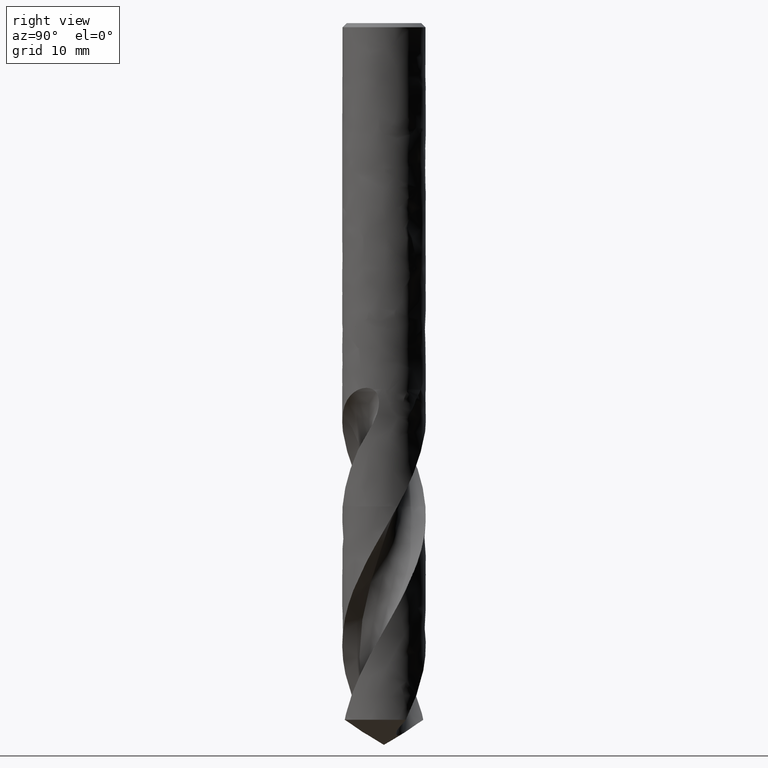
[diagram: clean part render]
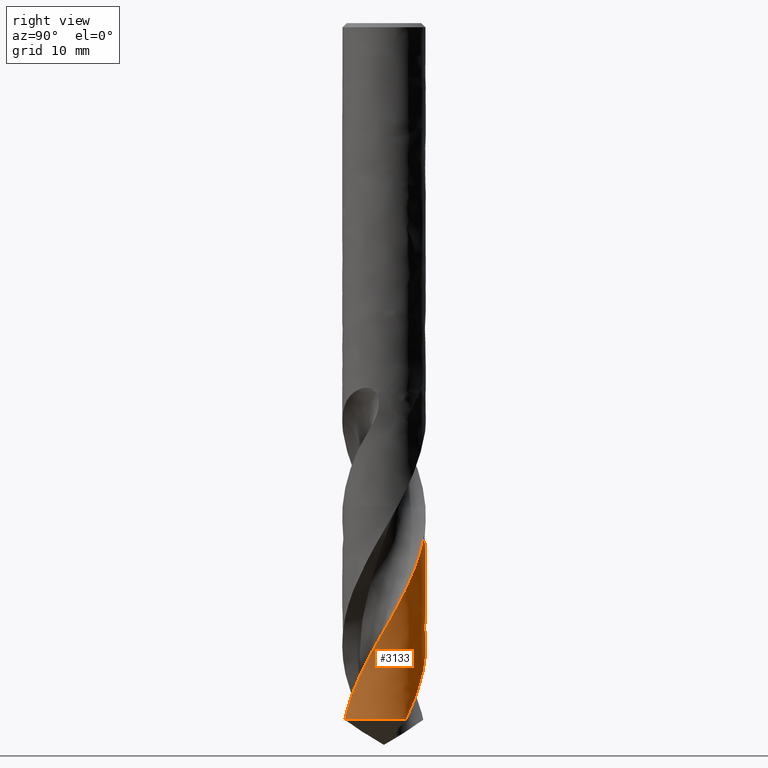
[diagram: same view with one face highlighted and labeled with its STEP entity id]
A machine part, right view. The second image highlights one B-rep face of the part: STEP entity #3133.
In plain terms, the highlighted face is a freeform B-spline surface patch.
Its self-contained STEP definition (entity closure, byte-faithful):
#1562 = VERTEX_POINT('', #1563);
#1563 = CARTESIAN_POINT('', (-0.714456293765341, 5.45339822535446, -63.6));
#1636 = EDGE_CURVE('', #1637, #1562, #1639, .T.);
#1637 = VERTEX_POINT('', #1638);
#1638 = CARTESIAN_POINT('', (-5.5, 4.23115469105411E-15, -63.6));
#1639 = CIRCLE('', #1640, 5.5);
#1640 = AXIS2_PLACEMENT_3D('', #1641, #1642, #1643);
#1641 = CARTESIAN_POINT('', (-9.02056207507939E-16, 4.89357754345122E-15, -63.6));
#1642 = DIRECTION('', (3.74939945665464E-33, 6.12323399573677E-17, -1.));
#1643 = DIRECTION('', (-1., -1.20440518617658E-16, -1.11242542372927E-32));
#1792 = VERTEX_POINT('', #1793);
#1793 = CARTESIAN_POINT('', (1.88244297158338, -5.16782434480278, -91.6952665953484));
#1923 = EDGE_CURVE('', #1924, #1792, #1926, .T.);
#1924 = VERTEX_POINT('', #1925);
#1925 = CARTESIAN_POINT('', (2.33759158946686, -4.97852041884471, -90.826332529143));
#1926 = B_SPLINE_CURVE_WITH_KNOTS('', 3, (#1927, #1928, #1929, #1930), .UNSPECIFIED., .F., .U., (4, 4), (0., 0.999020846707719), .UNSPECIFIED.);
#1927 = CARTESIAN_POINT('', (2.33759158946686, -4.97852041884471, -90.826332529143));
#1928 = CARTESIAN_POINT('', (2.18879290933509, -5.04838666703427, -91.1159379299427));
#1929 = CARTESIAN_POINT('', (2.03684695259408, -5.11158081378371, -91.4056294018046));
#1930 = CARTESIAN_POINT('', (1.88244297158338, -5.16782434480279, -91.6952665953484));
#1933 = VERTEX_POINT('', #1934);
#1934 = CARTESIAN_POINT('', (1.45523790382376, 5.30398742864976, -67.3994651246474));
#1964 = EDGE_CURVE('', #1562, #1933, #1965, .T.);
#1965 = B_SPLINE_CURVE_WITH_KNOTS('', 3, (#1966, #1967, #1968, #1969, #1970, #1971, #1972, #1973, #1974, #1975, #1976, #1977, #1978, #1979, #1980, #1981, #1982, #1983, #1984, #1985, #1986, #1987, #1988, #1989, #1990), .UNSPECIFIED., .F., .U., (4, 3, 3, 3, 3, 3, 3, 3, 4), (5.63758894589785, 6.31309553610532, 6.9771718687557, 7.06473277145245, 7.15232379458908, 7.81836378293465, 8.81791880769278, 9.81717496948258, 10.0223664958705), .UNSPECIFIED.);
#1966 = CARTESIAN_POINT('', (-0.714456293765341, 5.45339822535446, -63.6));
#1967 = CARTESIAN_POINT('', (-0.602931321988002, 5.46800924672236, -63.7950633634761));
#1968 = CARTESIAN_POINT('', (-0.490910463112535, 5.47920243172669, -63.9901731018263));
#1969 = CARTESIAN_POINT('', (-0.378694652772528, 5.48694727147633, -64.1852337242311));
#1970 = CARTESIAN_POINT('', (-0.268377647910894, 5.49456106067167, -64.3769937227995));
#1971 = CARTESIAN_POINT('', (-0.157834979974263, 5.49884604563292, -64.5687850125974));
#1972 = CARTESIAN_POINT('', (-0.0472962498844234, 5.49979663849005, -64.7605661219952));
#1973 = CARTESIAN_POINT('', (-0.032721312465724, 5.49992197764848, -64.7858531654169));
#1974 = CARTESIAN_POINT('', (-0.0181461519456954, 5.499989376754, -64.8111404338044));
#1975 = CARTESIAN_POINT('', (-0.00357127123751194, 5.49999884054731, -64.8364278187711));
#1976 = CARTESIAN_POINT('', (0.0110086231446351, 5.50000830759612, -64.8617239024508));
#1977 = CARTESIAN_POINT('', (0.0255882949925591, 5.49995979950791, -64.8870202025147));
#1978 = CARTESIAN_POINT('', (0.0401672423751572, 5.49985332464785, -64.9123166096839));
#1979 = CARTESIAN_POINT('', (0.151025200155263, 5.4990436924274, -65.1046698684171));
#1980 = CARTESIAN_POINT('', (0.261855447889091, 5.49488096805995, -65.297054145513));
#1981 = CARTESIAN_POINT('', (0.372439331926186, 5.48737541489864, -65.4894204360003));
#1982 = CARTESIAN_POINT('', (0.538397350784953, 5.47611150656394, -65.7781128502925));
#1983 = CARTESIAN_POINT('', (0.703866922490436, 5.4573092649288, -66.0668903026584));
#1984 = CARTESIAN_POINT('', (0.8680747056248, 5.43106309164739, -66.3556102224258));
#1985 = CARTESIAN_POINT('', (1.03223339128651, 5.40482476586717, -66.6442438160881));
#1986 = CARTESIAN_POINT('', (1.19521480600381, 5.37113386416284, -66.9329676358593));
#1987 = CARTESIAN_POINT('', (1.3562677191825, 5.33015364449315, -67.2216343224735));
#1988 = CARTESIAN_POINT('', (1.38933901195807, 5.32173859122925, -67.280910372308));
#1989 = CARTESIAN_POINT('', (1.4223311885796, 5.31301593785304, -67.3401877451115));
#1990 = CARTESIAN_POINT('', (1.45523790382384, 5.30398742864974, -67.3994651246476));
#2886 = VERTEX_POINT('', #2887);
#2887 = CARTESIAN_POINT('', (-5.5, 4.42483141522148E-15, -66.7629809395201));
#2906 = EDGE_CURVE('', #2886, #2907, #2909, .T.);
#2907 = VERTEX_POINT('', #2908);
#2908 = CARTESIAN_POINT('', (4.68774650891869, 2.87663565091595, -91.6952665953484));
#2909 = B_SPLINE_CURVE_WITH_KNOTS('', 3, (#2910, #2911, #2912, #2913, #2914, #2915, #2916, #2917, #2918, #2919, #2920, #2921, #2922, #2923, #2924, #2925, #2926, #2927, #2928, #2929, #2930, #2931, #2932, #2933, #2934, #2935, #2936, #2937, #2938, #2939, #2940, #2941, #2942, #2943, #2944, #2945, #2946, #2947, #2948, #2949, #2950, #2951, #2952, #2953, #2954, #2955, #2956, #2957, #2958, #2959, #2960, #2961, #2962, #2963, #2964, #2965, #2966, #2967, #2968, #2969, #2970, #2971, #2972, #2973, #2974, #2975, #2976, #2977, #2978, #2979, #2980, #2981, #2982, #2983, #2984, #2985, #2986, #2987, #2988, #2989, #2990, #2991, #2992, #2993, #2994, #2995, #2996, #2997, #2998, #2999, #3000, #3001, #3002, #3003), .UNSPECIFIED., .F., .U., (4, 3, 3, 3, 3, 3, 3, 3, 3, 3, 3, 3, 3, 3, 3, 3, 3, 3, 3, 3, 3, 3, 3, 3, 3, 3, 3, 3, 3, 3, 3, 4), (0., 0.999758644765526, 1.99921750479168, 2.998387169421, 3.99727759943345, 4.99589704900292, 5.99425250071334, 6.99234954716409, 7.99019251452656, 8.98778451409068, 9.98512750227229, 10.9822226189014, 11.9790700985448, 12.9756691362699, 13.9720178528583, 14.9681132425765, 15.9639511051551, 16.9595260555637, 17.2549115281004, 17.3862404591851, 18.3859764132351, 19.3854162031154, 20.3845711460112, 21.3834508987239, 22.382063588409, 23.3804159461218, 24.3785134124347, 25.3763602080537, 26.3739594415217, 27.3713132526911, 28.368422761486, 28.7157359659617), .UNSPECIFIED.);
#2910 = CARTESIAN_POINT('', (-5.5, 4.06639417699777E-15, -66.7629809395202));
#2911 = CARTESIAN_POINT('', (-5.5, 0.165901777686694, -67.05200357401));
#2912 = CARTESIAN_POINT('', (-5.49248605035625, 0.331825619167826, -67.3411107976475));
#2913 = CARTESIAN_POINT('', (-5.4774975031979, 0.497012175364733, -67.6301544417447));
#2914 = CARTESIAN_POINT('', (-5.46251345046201, 0.662149199198047, -67.9191114140496));
#2915 = CARTESIAN_POINT('', (-5.44005174625473, 0.826631586096404, -68.2081518236621));
#2916 = CARTESIAN_POINT('', (-5.41022036779698, 0.989704790266778, -68.4971295204857));
#2917 = CARTESIAN_POINT('', (-5.38039762110755, 1.15273080888317, -68.7860236010414));
#2918 = CARTESIAN_POINT('', (-5.3431944371722, 1.31443066578481, -69.0750010594549));
#2919 = CARTESIAN_POINT('', (-5.29878631199706, 1.47406364170399, -69.363916099153));
#2920 = CARTESIAN_POINT('', (-5.25439059741269, 1.63365200552729, -69.6527503967277));
#2921 = CARTESIAN_POINT('', (-5.20277139635496, 1.7912557748603, -69.9416676627317));
#2922 = CARTESIAN_POINT('', (-5.14417010662978, 1.94615362036428, -70.2305226836288));
#2923 = CARTESIAN_POINT('', (-5.08558471434738, 2.10100944495633, -70.5192993435174));
#2924 = CARTESIAN_POINT('', (-5.01999137981942, 2.25323926079832, -70.8081590187064));
#2925 = CARTESIAN_POINT('', (-4.94769487865577, 2.40214807780944, -71.0969563767816));
#2926 = CARTESIAN_POINT('', (-4.87541748999943, 2.55101752886498, -71.3856773875713));
#2927 = CARTESIAN_POINT('', (-4.79640429141526, 2.6966423694821, -71.6744815446248));
#2928 = CARTESIAN_POINT('', (-4.71102050172841, 2.83835970805228, -71.9632232299549));
#2929 = CARTESIAN_POINT('', (-4.62565881200637, 2.9800403657934, -72.2518901800091));
#2930 = CARTESIAN_POINT('', (-4.53388755291124, 3.11788577894343, -72.5406403564154));
#2931 = CARTESIAN_POINT('', (-4.43612923300418, 3.25127012536421, -72.8293280110225));
#2932 = CARTESIAN_POINT('', (-4.33839579879825, 3.38462051699747, -73.1179421762868));
#2933 = CARTESIAN_POINT('', (-4.23463017522533, 3.51357786934876, -73.406639465524));
#2934 = CARTESIAN_POINT('', (-4.1253088807038, 3.63755778494121, -73.6952743951417));
#2935 = CARTESIAN_POINT('', (-4.01601508161542, 3.76150651830612, -73.9838367300977));
#2936 = CARTESIAN_POINT('', (-3.90111421684733, 3.8805417486984, -74.2724818082546));
#2937 = CARTESIAN_POINT('', (-3.78113347188071, 3.99412439313342, -74.5610649815298));
#2938 = CARTESIAN_POINT('', (-3.66118267560171, 4.10767868592635, -74.8495761208522));
#2939 = CARTESIAN_POINT('', (-3.53609424200337, 4.21584016685491, -75.1381695205674));
#2940 = CARTESIAN_POINT('', (-3.40644174148983, 4.31811934316732, -75.4267014038251));
#2941 = CARTESIAN_POINT('', (-3.2768214637592, 4.42037309984123, -75.7151615777042));
#2942 = CARTESIAN_POINT('', (-3.14257391722332, 4.51679914561576, -76.0037038625825));
#2943 = CARTESIAN_POINT('', (-3.00431341389723, 4.60696222158129, -76.2921846626711));
#2944 = CARTESIAN_POINT('', (-2.86608724873379, 4.6971029047861, -76.5805938161187));
#2945 = CARTESIAN_POINT('', (-2.72378089271468, 4.78102892628921, -76.8690852195509));
#2946 = CARTESIAN_POINT('', (-2.5780435314882, 4.85836305248506, -77.1575149506208));
#2947 = CARTESIAN_POINT('', (-2.43234249203642, 4.9356779048812, -77.4458727970373));
#2948 = CARTESIAN_POINT('', (-2.28314022097427, 5.00644237327507, -77.7343130911234));
#2949 = CARTESIAN_POINT('', (-2.13111523294773, 5.07034001462409, -78.022691525362));
#2950 = CARTESIAN_POINT('', (-1.97912842985454, 5.1342216064591, -78.3109975260392));
#2951 = CARTESIAN_POINT('', (-1.82424614177741, 5.19127103461032, -78.59938603609));
#2952 = CARTESIAN_POINT('', (-1.66717107042872, 5.24123464671499, -78.8877126833889));
#2953 = CARTESIAN_POINT('', (-1.51013593623812, 5.29118555531008, -79.1759660221303));
#2954 = CARTESIAN_POINT('', (-1.35083256760068, 5.33407860286803, -79.4643016360397));
#2955 = CARTESIAN_POINT('', (-1.18998312195989, 5.36972440349137, -79.7525757185902));
#2956 = CARTESIAN_POINT('', (-1.02917526179181, 5.40536098836975, -80.0407752717324));
#2957 = CARTESIAN_POINT('', (-0.866742705343143, 5.43377164051128, -80.3290565505356));
#2958 = CARTESIAN_POINT('', (-0.703422161619908, 5.45483246878787, -80.6172768794773));
#2959 = CARTESIAN_POINT('', (-0.540144736320021, 5.47588773677371, -80.905421115076));
#2960 = CARTESIAN_POINT('', (-0.375897902987921, 5.48960761185717, -81.1936466404963));
#2961 = CARTESIAN_POINT('', (-0.21142622533065, 5.49593476591957, -81.4818114836006));
#2962 = CARTESIAN_POINT('', (-0.162627745413342, 5.49781202226452, -81.5673095250226));
#2963 = CARTESIAN_POINT('', (-0.113804826050724, 5.49903927700095, -81.6528103623681));
#2964 = CARTESIAN_POINT('', (-0.0649768051377998, 5.49961616976987, -81.7383102009006));
#2965 = CARTESIAN_POINT('', (-0.0432677761242531, 5.49987265736907, -81.7763235883092));
#2966 = CARTESIAN_POINT('', (-0.0215574303057859, 5.50000059990483, -81.8143373083659));
#2967 = CARTESIAN_POINT('', (0.000152515674229154, 5.49999999788537, -81.8523510373866));
#2968 = CARTESIAN_POINT('', (0.165418564650865, 5.49999541503757, -82.1417289477644));
#2969 = CARTESIAN_POINT('', (0.330707116225574, 5.4925343452656, -82.4311895435007));
#2970 = CARTESIAN_POINT('', (0.495265184172215, 5.47765573921426, -82.720588422793));
#2971 = CARTESIAN_POINT('', (0.659774503043306, 5.46278154083676, -83.0099015698693));
#2972 = CARTESIAN_POINT('', (0.82363642636091, 5.44048670079865, -83.2992968070829));
#2973 = CARTESIAN_POINT('', (0.986104317918201, 5.4108777729852, -83.5886307844355));
#2974 = CARTESIAN_POINT('', (1.14852590504629, 5.38127728391302, -83.877882299681));
#2975 = CARTESIAN_POINT('', (1.30963634993059, 5.34435193629819, -84.1672157712203));
#2976 = CARTESIAN_POINT('', (1.46870294991153, 5.30027467636557, -84.4564879819798));
#2977 = CARTESIAN_POINT('', (1.62772573930324, 5.25620955632109, -84.745680520539));
#2978 = CARTESIAN_POINT('', (1.78478533106141, 5.20497448268417, -85.0349552237152));
#2979 = CARTESIAN_POINT('', (1.9391698074724, 5.14680682149504, -85.32416840347));
#2980 = CARTESIAN_POINT('', (2.0935130072577, 5.08865471215953, -85.6133042584546));
#2981 = CARTESIAN_POINT('', (2.24525832973436, 5.0235452199888, -85.9025225583561));
#2982 = CARTESIAN_POINT('', (2.39372035904266, 4.95177774568941, -86.191679071795));
#2983 = CARTESIAN_POINT('', (2.54214368524484, 4.88002898071378, -86.4807602039713));
#2984 = CARTESIAN_POINT('', (2.68735726809952, 4.80159101671254, -86.7699238935791));
#2985 = CARTESIAN_POINT('', (2.82870692141558, 4.71682278156978, -87.0590257646124));
#2986 = CARTESIAN_POINT('', (2.97002048646006, 4.63207618878, -87.3480538244507));
#2987 = CARTESIAN_POINT('', (3.10754038506752, 4.54096159402636, -87.6371641758955));
#2988 = CARTESIAN_POINT('', (3.2406475921603, 4.44389504640082, -87.9262131073603));
#2989 = CARTESIAN_POINT('', (3.37372136957602, 4.34685287689431, -88.2151894446159));
#2990 = CARTESIAN_POINT('', (3.50245005560673, 4.24381400778508, -88.5042474070677));
#2991 = CARTESIAN_POINT('', (3.62625373757042, 4.13524894423015, -88.7932446591298));
#2992 = CARTESIAN_POINT('', (3.75002670429211, 4.02671081527157, -89.0821702120276));
#2993 = CARTESIAN_POINT('', (3.86893917201502, 3.91259478958577, -89.3711768776734));
#2994 = CARTESIAN_POINT('', (3.98245575591048, 3.79342143087418, -89.6601231418824));
#2995 = CARTESIAN_POINT('', (4.09594441325987, 3.67427739034835, -89.9489983215777));
#2996 = CARTESIAN_POINT('', (4.20409673855046, 3.550018829325, -90.2379546762942));
#2997 = CARTESIAN_POINT('', (4.30642738499145, 3.42121077658126, -90.5268504559988));
#2998 = CARTESIAN_POINT('', (4.4087329654833, 3.29243427544215, -90.8156754705204));
#2999 = CARTESIAN_POINT('', (4.50527015894429, 3.1590471244348, -91.1045820058971));
#3000 = CARTESIAN_POINT('', (4.59560779994215, 3.02165334694616, -91.3934275850309));
#3001 = CARTESIAN_POINT('', (4.62707420890025, 2.97379634356417, -91.4940382830563));
#3002 = CARTESIAN_POINT('', (4.65779265714716, 2.92544825046292, -91.5946532905021));
#3003 = CARTESIAN_POINT('', (4.68774650891869, 2.87663565091596, -91.6952665953484));
#3108 = EDGE_CURVE('', #1637, #2886, #3109, .T.);
#3109 = LINE('', #3110, #3111);
#3110 = CARTESIAN_POINT('', (-5.5, 4.23115469105411E-15, -63.6));
#3111 = VECTOR('', #3112, 3.16298093952014);
#3112 = DIRECTION('', (0., 1.93676724167371E-16, -3.16298093952014));
#3133 = ADVANCED_FACE('', (#3134), #3236, .T.);
#3134 = FACE_OUTER_BOUND('', #3135, .T.);
#3135 = EDGE_LOOP('', (#3136, #3137, #3138, #3226, #3227, #3234, #3235));
#3136 = ORIENTED_EDGE('', *, *, #1636, .T.);
#3137 = ORIENTED_EDGE('', *, *, #1964, .T.);
#3138 = ORIENTED_EDGE('', *, *, #3139, .T.);
#3139 = EDGE_CURVE('', #1933, #1924, #3140, .T.);
#3140 = B_SPLINE_CURVE_WITH_KNOTS('', 3, (#3141, #3142, #3143, #3144, #3145, #3146, #3147, #3148, #3149, #3150, #3151, #3152, #3153, #3154, #3155, #3156, #3157, #3158, #3159, #3160, #3161, #3162, #3163, #3164, #3165, #3166, #3167, #3168, #3169, #3170, #3171, #3172, #3173, #3174, #3175, #3176, #3177, #3178, #3179, #3180, #3181, #3182, #3183, #3184, #3185, #3186, #3187, #3188, #3189, #3190, #3191, #3192, #3193, #3194, #3195, #3196, #3197, #3198, #3199, #3200, #3201, #3202, #3203, #3204, #3205, #3206, #3207, #3208, #3209, #3210, #3211, #3212, #3213, #3214, #3215, #3216, #3217, #3218, #3219, #3220, #3221, #3222, #3223, #3224, #3225), .UNSPECIFIED., .F., .U., (4, 3, 3, 3, 3, 3, 3, 3, 3, 3, 3, 3, 3, 3, 3, 3, 3, 3, 3, 3, 3, 3, 3, 3, 3, 3, 3, 3, 4), (0., 0.998911147792225, 1.99754720117712, 2.99591602247435, 3.9940235804012, 4.99187464014306, 5.98947273044798, 6.98682017001589, 7.98391827311923, 8.98076759414715, 9.97736765893833, 10.973716916191, 11.9698126901722, 12.9656511145799, 13.9612270721202, 14.4041577263092, 15.4038959571176, 16.4033367901297, 17.4024917915255, 18.401370957113, 19.3999827407512, 20.3983341890426, 21.396431050193, 22.39427785464, 23.3918779832107, 24.3892338186676, 25.3863467989272, 26.3832174234606, 26.9821653296981), .UNSPECIFIED.);
#3141 = CARTESIAN_POINT('', (1.45523790382376, 5.30398742864976, -67.3994651246474));
#3142 = CARTESIAN_POINT('', (1.61543401558988, 5.2600349387498, -67.6880386163158));
#3143 = CARTESIAN_POINT('', (1.77364768349599, 5.20881438093824, -67.9767034753212));
#3144 = CARTESIAN_POINT('', (1.92915023440463, 5.15057078129186, -68.2653137929611));
#3145 = CARTESIAN_POINT('', (2.08460996080163, 5.09234322159914, -68.5538446289729));
#3146 = CARTESIAN_POINT('', (2.23744059211253, 5.02706637483974, -68.8424670212204));
#3147 = CARTESIAN_POINT('', (2.38694071803065, 4.95504934471976, -69.131034999853));
#3148 = CARTESIAN_POINT('', (2.53640083815223, 4.88305158614645, -69.4195257585383));
#3149 = CARTESIAN_POINT('', (2.68260905901589, 4.80428031693685, -69.7081081640203));
#3150 = CARTESIAN_POINT('', (2.8248973197227, 4.71910533184243, -69.9966357976577));
#3151 = CARTESIAN_POINT('', (2.96714834498128, 4.63395263620978, -70.285087926431));
#3152 = CARTESIAN_POINT('', (3.10555297170764, 4.54235685428157, -70.5736320037277));
#3153 = CARTESIAN_POINT('', (3.23948188959772, 4.44474488435146, -70.8621210236811));
#3154 = CARTESIAN_POINT('', (3.37337638983003, 4.34715799918592, -71.1505359064241));
#3155 = CARTESIAN_POINT('', (3.50286358918976, 4.24350990300595, -71.43904288298));
#3156 = CARTESIAN_POINT('', (3.62735724179905, 4.13428100645905, -71.7274947170105));
#3157 = CARTESIAN_POINT('', (3.75181933349662, 4.02507980099108, -72.0158734243983));
#3158 = CARTESIAN_POINT('', (3.87135157765912, 3.91024696017409, -72.3043439158199));
#3159 = CARTESIAN_POINT('', (3.98541403957073, 3.79031330277492, -72.5927597042669));
#3160 = CARTESIAN_POINT('', (4.09944784280665, 3.67040977921412, -72.881103027028));
#3161 = CARTESIAN_POINT('', (4.20807160951587, 3.54534800529924, -73.1695373316528));
#3162 = CARTESIAN_POINT('', (4.3107949373925, 3.41570593109992, -73.4579177844072));
#3163 = CARTESIAN_POINT('', (4.41349258447789, 3.28609626736777, -73.7462261421628));
#3164 = CARTESIAN_POINT('', (4.51034530038357, 3.15184223599021, -74.0346247998627));
#3165 = CARTESIAN_POINT('', (4.60091677838787, 3.01356347176378, -74.3229700296438));
#3166 = CARTESIAN_POINT('', (4.69146565825444, 2.87531920893481, -74.6112433155264));
#3167 = CARTESIAN_POINT('', (4.77578283079517, 2.73298147861543, -74.8996069103124));
#3168 = CARTESIAN_POINT('', (4.85349072799711, 2.58720462144882, -75.1879169063771));
#3169 = CARTESIAN_POINT('', (4.93117919480208, 2.44146421491727, -75.4761548122441));
#3170 = CARTESIAN_POINT('', (5.0023007700302, 2.29221326179289, -75.7644833749371));
#3171 = CARTESIAN_POINT('', (5.06653973130762, 2.14013437687482, -76.0527579367097));
#3172 = CARTESIAN_POINT('', (5.13076252600395, 1.98809376461208, -76.3409599503902));
#3173 = CARTESIAN_POINT('', (5.18813771141131, 1.83315216169135, -76.6292529459607));
#3174 = CARTESIAN_POINT('', (5.23841331943123, 1.6760148850191, -76.9174916583912));
#3175 = CARTESIAN_POINT('', (5.28867613672991, 1.51891758596583, -77.2056570394158));
#3176 = CARTESIAN_POINT('', (5.33186729392594, 1.35954986877172, -77.4939133791042));
#3177 = CARTESIAN_POINT('', (5.36779971479316, 1.19863514960417, -77.7821155881165));
#3178 = CARTESIAN_POINT('', (5.40372285222256, 1.03776200408387, -78.0702433377068));
#3179 = CARTESIAN_POINT('', (5.43240846233138, 0.875264307551056, -78.3584614045581));
#3180 = CARTESIAN_POINT('', (5.45373514978702, 0.7118798465878, -78.6466261684593));
#3181 = CARTESIAN_POINT('', (5.47505621630184, 0.548538447838856, -78.9347149825869));
#3182 = CARTESIAN_POINT('', (5.48903288035565, 0.384228849356284, -79.2228931674975));
#3183 = CARTESIAN_POINT('', (5.49561033295786, 0.219697674743184, -79.511018825754));
#3184 = CARTESIAN_POINT('', (5.49853663442379, 0.146497935181458, -79.6392056158564));
#3185 = CARTESIAN_POINT('', (5.50000004613528, 0.0732423684871928, -79.7674022703719));
#3186 = CARTESIAN_POINT('', (5.49999999999891, -3.46436118062671E-6, -79.8955961323125));
#3187 = CARTESIAN_POINT('', (5.49999989586457, -0.165326542936521, -80.1849423392752));
#3188 = CARTESIAN_POINT('', (5.49253820848068, -0.330657239599393, -80.4743799238113));
#3189 = CARTESIAN_POINT('', (5.47765766840862, -0.495243846730252, -80.76376334779));
#3190 = CARTESIAN_POINT('', (5.46278155493514, -0.659781493350509, -81.0530606872418));
#3191 = CARTESIAN_POINT('', (5.44048357787954, -0.823656973007834, -81.3424484746554));
#3192 = CARTESIAN_POINT('', (5.41087412117002, -0.986124355675486, -81.6317830839987));
#3193 = CARTESIAN_POINT('', (5.38127313251441, -1.14854527404726, -81.9210349460934));
#3194 = CARTESIAN_POINT('', (5.3443497620175, -1.30964155055269, -82.2103765169522));
#3195 = CARTESIAN_POINT('', (5.30028096398278, -1.46868025888672, -82.4996653747926));
#3196 = CARTESIAN_POINT('', (5.25622433198086, -1.62767506154984, -82.7888743689223));
#3197 = CARTESIAN_POINT('', (5.20500385249648, -1.78469435014731, -83.0781731135601));
#3198 = CARTESIAN_POINT('', (5.14686081073466, -1.93902650701956, -83.3674189405527));
#3199 = CARTESIAN_POINT('', (5.08873333281718, -2.09331735195504, -83.6565873416505));
#3200 = CARTESIAN_POINT('', (5.02365815469198, -2.24499931763271, -83.9458459210856));
#3201 = CARTESIAN_POINT('', (4.95193804443138, -2.39338872816626, -84.2350511100764));
#3202 = CARTESIAN_POINT('', (4.88023663140637, -2.54173945398842, -84.5241809040694));
#3203 = CARTESIAN_POINT('', (4.80185913930815, -2.68687114043069, -84.8134012935228));
#3204 = CARTESIAN_POINT('', (4.71716686552638, -2.82813308788326, -85.1025679396281));
#3205 = CARTESIAN_POINT('', (4.63249618891252, -2.96935901247493, -85.3916608460599));
#3206 = CARTESIAN_POINT('', (4.54147375082808, -3.10678429440123, -85.6808443868345));
#3207 = CARTESIAN_POINT('', (4.44451673974021, -3.23979489322534, -85.9699743098892));
#3208 = CARTESIAN_POINT('', (4.34758401963202, -3.37277216843813, -86.2590317962112));
#3209 = CARTESIAN_POINT('', (4.24467321951288, -3.50140066630582, -86.5481792539326));
#3210 = CARTESIAN_POINT('', (4.13625538015922, -3.62510571295568, -86.8372739994619));
#3211 = CARTESIAN_POINT('', (4.02786434258054, -3.7487801787081, -87.1262972784101));
#3212 = CARTESIAN_POINT('', (3.91391519147049, -3.86759491268255, -87.4154094605406));
#3213 = CARTESIAN_POINT('', (3.7949295470678, -3.98101868028671, -87.7044698550069));
#3214 = CARTESIAN_POINT('', (3.67597303996445, -4.09441467258835, -87.9934594641337));
#3215 = CARTESIAN_POINT('', (3.55192235289746, -4.20247969536859, -88.2825375730971));
#3216 = CARTESIAN_POINT('', (3.42334374855494, -4.30473199853716, -88.571564050842));
#3217 = CARTESIAN_POINT('', (3.29479645298029, -4.40695940336716, -88.8605201509144));
#3218 = CARTESIAN_POINT('', (3.16165924339851, -4.50342807594568, -89.1495650573952));
#3219 = CARTESIAN_POINT('', (3.02453652885376, -4.59371078602356, -89.4385579131612));
#3220 = CARTESIAN_POINT('', (2.88744714300466, -4.68397155221725, -89.7274805270641));
#3221 = CARTESIAN_POINT('', (2.74630774256528, -4.76809322872131, -90.0164925009704));
#3222 = CARTESIAN_POINT('', (2.60175513847104, -4.84570636743906, -90.3054518887722));
#3223 = CARTESIAN_POINT('', (2.51490386867468, -4.89233852389696, -90.4790668153758));
#3224 = CARTESIAN_POINT('', (2.42680159765592, -4.93663316172919, -90.6527039717253));
#3225 = CARTESIAN_POINT('', (2.33759158946686, -4.97852041884471, -90.826332529143));
#3226 = ORIENTED_EDGE('', *, *, #1923, .T.);
#3227 = ORIENTED_EDGE('', *, *, #3228, .F.);
#3228 = EDGE_CURVE('', #2907, #1792, #3229, .T.);
#3229 = CIRCLE('', #3230, 5.5);
#3230 = AXIS2_PLACEMENT_3D('', #3231, #3232, #3233);
#3231 = CARTESIAN_POINT('', (3.43802182750402E-31, 5.61471573664783E-15, -91.6952665953484));
#3232 = DIRECTION('', (3.74939945665464E-33, 6.12323399573677E-17, -1.));
#3233 = DIRECTION('', (-1., 6.12323399573677E-17, 0.));
#3234 = ORIENTED_EDGE('', *, *, #2906, .F.);
#3235 = ORIENTED_EDGE('', *, *, #3108, .F.);
#3236 = (
   BOUNDED_SURFACE ()
   B_SPLINE_SURFACE (1, 2, ((#3237, #3238, #3239, #3240, #3241, #3242, #3243, #3244, #3245), (#3246, #3247, #3248, #3249, #3250, #3251, #3252, #3253, #3254)), .UNSPECIFIED., .F., .T., .U.)
   B_SPLINE_SURFACE_WITH_KNOTS ((2, 2), (3, 2, 2, 2, 3), (-1.00539640473814, -0.387238723872387), (0., 0.25, 0.5, 0.75, 1.), .UNSPECIFIED.)
   GEOMETRIC_REPRESENTATION_ITEM ()
   RATIONAL_B_SPLINE_SURFACE (((1., 0.707106781186548, 1., 0.707106781186548, 1., 0.707106781186548, 1., 0.707106781186548, 1.), (1., 0.707106781186548, 1., 0.707106781186548, 1., 0.707106781186548, 1., 0.707106781186548, 1.)))
   REPRESENTATION_ITEM ('')
   SURFACE ()
);
#3237 = CARTESIAN_POINT('', (-5.5, 5.95149360641335E-15, -91.6952665953484));
#3238 = CARTESIAN_POINT('', (-5.5, 5.5, -91.6952665953484));
#3239 = CARTESIAN_POINT('', (-1.90125692967058E-15, 5.50000000000001, -91.6952665953484));
#3240 = CARTESIAN_POINT('', (5.5, 5.50000000000001, -91.6952665953484));
#3241 = CARTESIAN_POINT('', (5.5, 7.94989505073864E-15, -91.6952665953484));
#3242 = CARTESIAN_POINT('', (5.5, -5.49999999999999, -91.6952665953484));
#3243 = CARTESIAN_POINT('', (7.70700254185746E-16, -5.49999999999999, -91.6952665953484));
#3244 = CARTESIAN_POINT('', (-5.5, -5.5, -91.6952665953484));
#3245 = CARTESIAN_POINT('', (-5.5, 5.95149360641335E-15, -91.6952665953484));
#3246 = CARTESIAN_POINT('', (-5.5, 4.23115469105411E-15, -63.6));
#3247 = CARTESIAN_POINT('', (-5.5, 5.5, -63.6));
#3248 = CARTESIAN_POINT('', (-1.90125692967058E-15, 5.5, -63.6));
#3249 = CARTESIAN_POINT('', (5.5, 5.50000000000001, -63.6));
#3250 = CARTESIAN_POINT('', (5.5, 6.22955613537939E-15, -63.6));
#3251 = CARTESIAN_POINT('', (5.5, -5.49999999999999, -63.6));
#3252 = CARTESIAN_POINT('', (7.70700254185746E-16, -5.49999999999999, -63.6));
#3253 = CARTESIAN_POINT('', (-5.5, -5.5, -63.6));
#3254 = CARTESIAN_POINT('', (-5.5, 4.23115469105411E-15, -63.6));